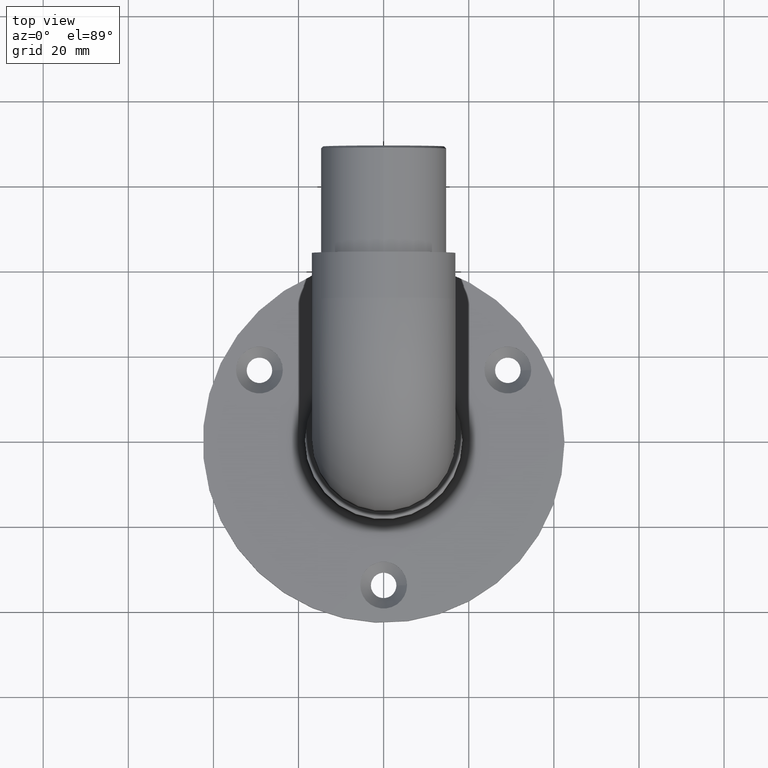
[diagram: clean part render]
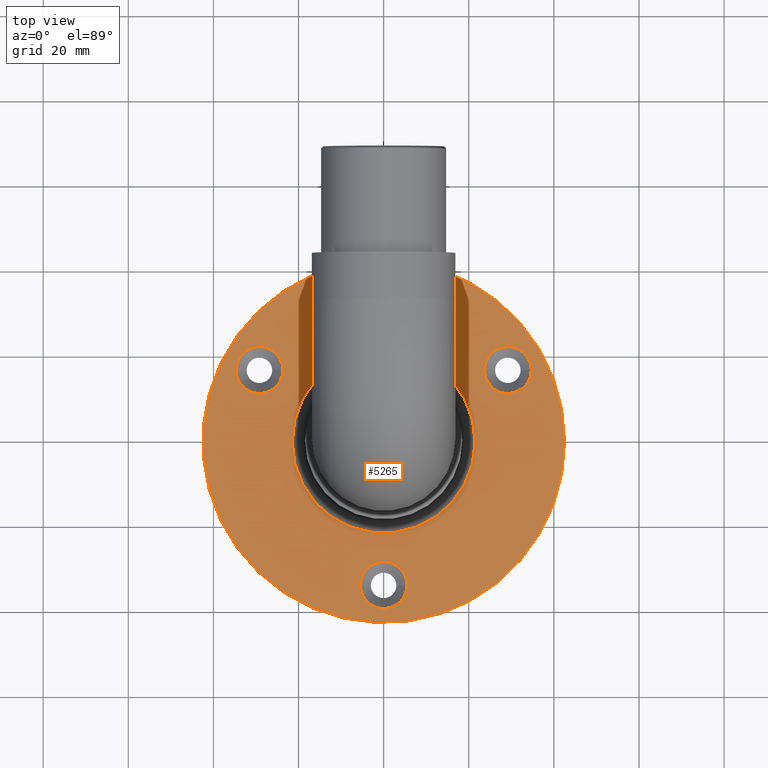
[diagram: same view with one face highlighted and labeled with its STEP entity id]
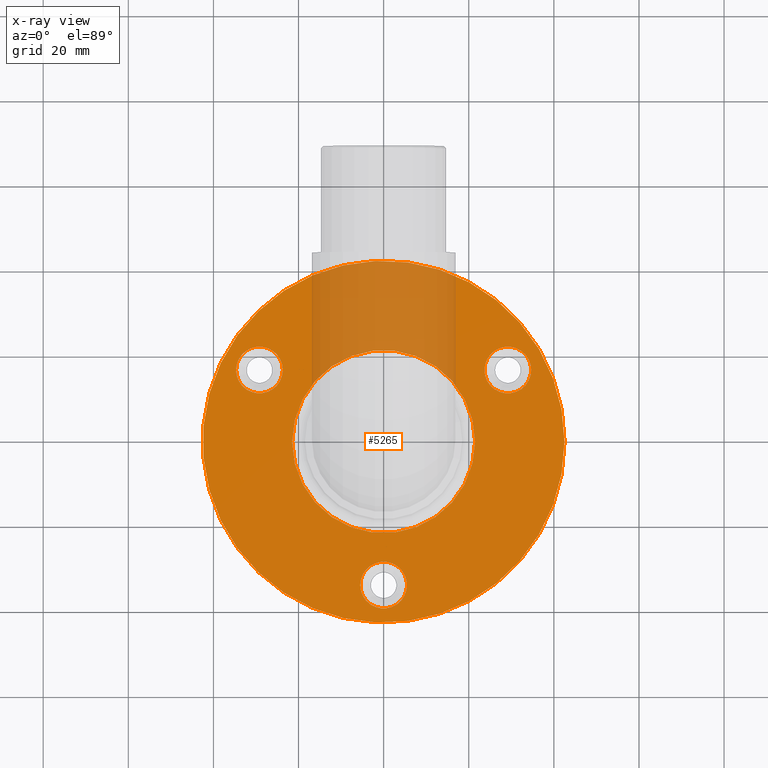
[diagram: x-ray of the same camera — body ghosted, the highlighted face saturated]
A machine part, top view. The second image highlights one B-rep face of the part: STEP entity #5265.
The next image is the same camera in x-ray: the body ghosted, the highlighted face saturated — about 19% of this face is hidden behind the body in this view.
In plain terms, the highlighted planar face has unit normal (0, 0, 1).
Its self-contained STEP definition (entity closure, byte-faithful):
#752 = DIRECTION ( 'NONE',  ( 0.000000000000000000, 0.000000000000000000, 1.000000000000000000 ) ) ;
#1154 = CIRCLE ( 'NONE', #2585, 5.499999999999998224 ) ;
#1551 = CARTESIAN_POINT ( 'NONE',  ( 21.50000000000000000, 0.000000000000000000, 5.000000000000000000 ) ) ;
#2258 = EDGE_LOOP ( 'NONE', ( #5827 ) ) ;
#2559 = ORIENTED_EDGE ( 'NONE', *, *, #5783, .F. ) ;
#2585 = AXIS2_PLACEMENT_3D ( 'NONE', #13203, #5337, #14495 ) ;
#2976 = DIRECTION ( 'NONE',  ( -0.000000000000000000, -0.000000000000000000, -1.000000000000000000 ) ) ;
#3521 = AXIS2_PLACEMENT_3D ( 'NONE', #12283, #4454, #10967 ) ;
#4027 = AXIS2_PLACEMENT_3D ( 'NONE', #15593, #6551, #12983 ) ;
#4035 = CIRCLE ( 'NONE', #4027, 5.499999999999994671 ) ;
#4454 = DIRECTION ( 'NONE',  ( -0.000000000000000000, -0.000000000000000000, 1.000000000000000000 ) ) ;
#5122 = CIRCLE ( 'NONE', #12093, 21.50000000000000000 ) ;
#5161 = AXIS2_PLACEMENT_3D ( 'NONE', #16878, #8979, #14254 ) ;
#5265 = ADVANCED_FACE ( 'NONE', ( #9000, #14670, #5508, #15090, #6145 ), #11494, .T. ) ;
#5323 = CARTESIAN_POINT ( 'NONE',  ( 5.500000000000002665, -33.70000000000000284, 5.000000000000001776 ) ) ;
#5337 = DIRECTION ( 'NONE',  ( -0.000000000000000000, -0.000000000000000000, 1.000000000000000000 ) ) ;
#5508 = FACE_BOUND ( 'NONE', #7876, .T. ) ;
#5783 = EDGE_CURVE ( 'NONE', #7340, #7340, #1154, .T. ) ;
#5827 = ORIENTED_EDGE ( 'NONE', *, *, #10320, .T. ) ;
#6003 = DIRECTION ( 'NONE',  ( 1.000000000000000000, 0.000000000000000000, 0.000000000000000000 ) ) ;
#6145 = FACE_OUTER_BOUND ( 'NONE', #2258, .T. ) ;
#6504 = VERTEX_POINT ( 'NONE', #1551 ) ;
#6551 = DIRECTION ( 'NONE',  ( -0.000000000000000000, -0.000000000000000000, 1.000000000000000000 ) ) ;
#6762 = CARTESIAN_POINT ( 'NONE',  ( -23.68505610753574331, 16.84999999999972786, 5.000000000000001776 ) ) ;
#7340 = VERTEX_POINT ( 'NONE', #6762 ) ;
#7513 = VERTEX_POINT ( 'NONE', #10758 ) ;
#7876 = EDGE_LOOP ( 'NONE', ( #14238 ) ) ;
#7910 = VERTEX_POINT ( 'NONE', #5323 ) ;
#8979 = DIRECTION ( 'NONE',  ( 0.000000000000000000, 0.000000000000000000, 1.000000000000000000 ) ) ;
#9000 = FACE_BOUND ( 'NONE', #16857, .T. ) ;
#9540 = CARTESIAN_POINT ( 'NONE',  ( 0.000000000000000000, 0.000000000000000000, 5.000000000000000000 ) ) ;
#9774 = CARTESIAN_POINT ( 'NONE',  ( 0.000000000000000000, 0.000000000000000000, 5.000000000000000000 ) ) ;
#10212 = EDGE_CURVE ( 'NONE', #7910, #7910, #12679, .T. ) ;
#10320 = EDGE_CURVE ( 'NONE', #7513, #7513, #13671, .T. ) ;
#10758 = CARTESIAN_POINT ( 'NONE',  ( 42.50000000000000711, 0.000000000000000000, 5.000000000000000000 ) ) ;
#10784 = VERTEX_POINT ( 'NONE', #11845 ) ;
#10967 = DIRECTION ( 'NONE',  ( 1.000000000000000000, 0.000000000000000000, 0.000000000000000000 ) ) ;
#10993 = EDGE_LOOP ( 'NONE', ( #2559 ) ) ;
#11170 = ORIENTED_EDGE ( 'NONE', *, *, #10212, .F. ) ;
#11494 = PLANE ( 'NONE',  #5161 ) ;
#11536 = ORIENTED_EDGE ( 'NONE', *, *, #14921, .T. ) ;
#11845 = CARTESIAN_POINT ( 'NONE',  ( 34.68505610753550172, 16.85000000000014353, 5.000000000000001776 ) ) ;
#12093 = AXIS2_PLACEMENT_3D ( 'NONE', #9540, #2976, #16171 ) ;
#12283 = CARTESIAN_POINT ( 'NONE',  ( 4.127059713126582066E-15, -33.70000000000000284, 5.000000000000001776 ) ) ;
#12679 = CIRCLE ( 'NONE', #3521, 5.499999999999998224 ) ;
#12983 = DIRECTION ( 'NONE',  ( 1.000000000000000000, 0.000000000000000000, 0.000000000000000000 ) ) ;
#13203 = CARTESIAN_POINT ( 'NONE',  ( -29.18505610753574331, 16.84999999999972786, 5.000000000000001776 ) ) ;
#13463 = EDGE_LOOP ( 'NONE', ( #11170 ) ) ;
#13671 = CIRCLE ( 'NONE', #16648, 42.50000000000000711 ) ;
#14238 = ORIENTED_EDGE ( 'NONE', *, *, #16499, .F. ) ;
#14254 = DIRECTION ( 'NONE',  ( 1.000000000000000000, 0.000000000000000000, -0.000000000000000000 ) ) ;
#14495 = DIRECTION ( 'NONE',  ( 1.000000000000000000, 0.000000000000000000, 0.000000000000000000 ) ) ;
#14670 = FACE_BOUND ( 'NONE', #10993, .T. ) ;
#14921 = EDGE_CURVE ( 'NONE', #6504, #6504, #5122, .T. ) ;
#15090 = FACE_BOUND ( 'NONE', #13463, .T. ) ;
#15593 = CARTESIAN_POINT ( 'NONE',  ( 29.18505610753550528, 16.85000000000014353, 5.000000000000001776 ) ) ;
#16171 = DIRECTION ( 'NONE',  ( 1.000000000000000000, 0.000000000000000000, 0.000000000000000000 ) ) ;
#16499 = EDGE_CURVE ( 'NONE', #10784, #10784, #4035, .T. ) ;
#16648 = AXIS2_PLACEMENT_3D ( 'NONE', #9774, #752, #6003 ) ;
#16857 = EDGE_LOOP ( 'NONE', ( #11536 ) ) ;
#16878 = CARTESIAN_POINT ( 'NONE',  ( 0.000000000000000000, 0.000000000000000000, 5.000000000000000000 ) ) ;